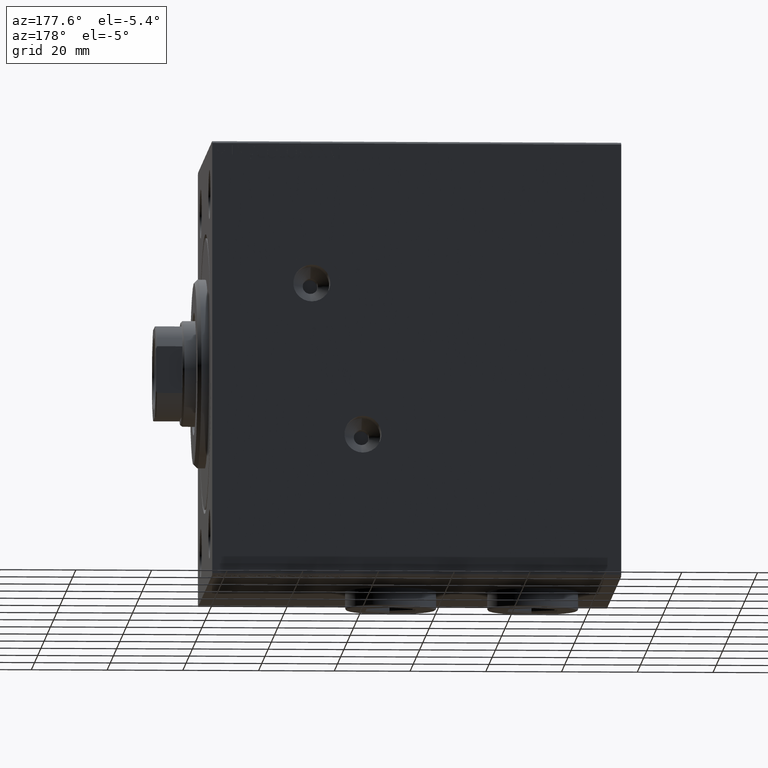
[diagram: clean part render]
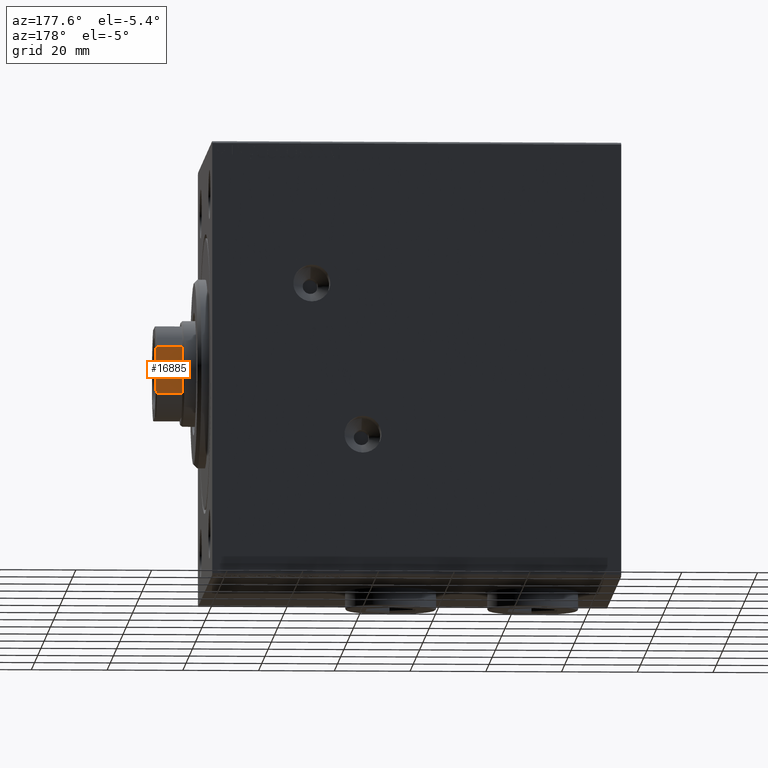
[diagram: same view with one face highlighted and labeled with its STEP entity id]
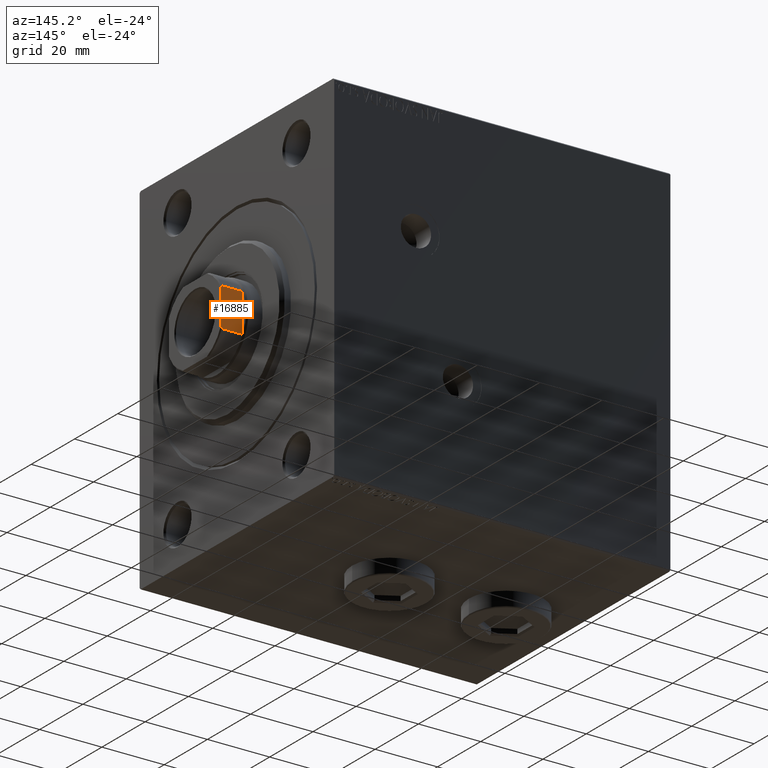
[diagram: same view with one face highlighted and labeled with its STEP entity id]
A machine part, auxiliary view. The second image highlights one B-rep face of the part: STEP entity #16885.
A second angle (auxiliary view) of the same face is appended — the face is thin or edge-on in the first view.
In plain terms, the highlighted planar face has unit normal (0, -1, 0).
Its self-contained STEP definition (entity closure, byte-faithful):
#210 = CARTESIAN_POINT ( 'NONE',  ( -6.184658438426490434, 12.00000000000000000, 103.7000000000000028 ) ) ;
#387 = CARTESIAN_POINT ( 'NONE',  ( 5.499090833947071211, 12.00000000000000000, 104.0000000000000142 ) ) ;
#3299 = CARTESIAN_POINT ( 'NONE',  ( -12.00000000000000178, 12.00000000000000000, 104.0000000000000142 ) ) ;
#3728 = CARTESIAN_POINT ( 'NONE',  ( -5.499090833946999268, 12.00000000000000000, 104.0000000000000142 ) ) ;
#4626 = EDGE_CURVE ( 'NONE', #15265, #40886, #9315, .T. ) ;
#5464 = LINE ( 'NONE', #30256, #32163 ) ;
#7803 = ORIENTED_EDGE ( 'NONE', *, *, #38481, .T. ) ;
#9315 = LINE ( 'NONE', #31536, #13083 ) ;
#11127 = VECTOR ( 'NONE', #34137, 1000.000000000000000 ) ;
#11155 = CARTESIAN_POINT ( 'NONE',  ( 5.957846001622728593, 12.00000000000000000, 103.8039079593495586 ) ) ;
#12340 = CARTESIAN_POINT ( 'NONE',  ( -6.184658438426489546, 12.00000000000000000, 97.00000000000000000 ) ) ;
#13083 = VECTOR ( 'NONE', #38085, 1000.000000000000000 ) ;
#14090 = VERTEX_POINT ( 'NONE', #21501 ) ;
#14661 = CARTESIAN_POINT ( 'NONE',  ( 5.729389212963480915, 12.00000000000000000, 103.9040582041574368 ) ) ;
#15265 = VERTEX_POINT ( 'NONE', #27568 ) ;
#16885 = ADVANCED_FACE ( 'NONE', ( #25830 ), #39875, .F. ) ;
#17553 = DIRECTION ( 'NONE',  ( -1.000000000000000000, -0.000000000000000000, -0.000000000000000000 ) ) ;
#19483 = B_SPLINE_CURVE_WITH_KNOTS ( 'NONE', 3,
 ( #210, #36679, #43462, #3728 ),
 .UNSPECIFIED., .F., .F.,
 ( 4, 4 ),
 ( 0.000000000000000000, 0.0007483334419306367311 ),
 .UNSPECIFIED. ) ;
#19813 = EDGE_CURVE ( 'NONE', #14090, #25218, #35343, .T. ) ;
#21501 = CARTESIAN_POINT ( 'NONE',  ( 5.499090833947071211, 12.00000000000000000, 104.0000000000000142 ) ) ;
#23625 = EDGE_CURVE ( 'NONE', #40886, #27778, #30154, .T. ) ;
#23856 = AXIS2_PLACEMENT_3D ( 'NONE', #25377, #29357, #28906 ) ;
#24199 = CARTESIAN_POINT ( 'NONE',  ( -6.184658438426490434, 12.00000000000000000, 103.7000000000000028 ) ) ;
#24798 = ORIENTED_EDGE ( 'NONE', *, *, #19813, .F. ) ;
#25218 = VERTEX_POINT ( 'NONE', #45701 ) ;
#25377 = CARTESIAN_POINT ( 'NONE',  ( -12.00000000000000178, 12.00000000000000000, 104.0000000000000142 ) ) ;
#25404 = CARTESIAN_POINT ( 'NONE',  ( 6.184658438426490434, 11.99999999999999822, 103.7000000000000455 ) ) ;
#25830 = FACE_OUTER_BOUND ( 'NONE', #41882, .T. ) ;
#27568 = CARTESIAN_POINT ( 'NONE',  ( 6.184658438426492211, 12.00000000000000178, 97.00000000000000000 ) ) ;
#27778 = VERTEX_POINT ( 'NONE', #24199 ) ;
#28478 = ORIENTED_EDGE ( 'NONE', *, *, #4626, .T. ) ;
#28655 = EDGE_CURVE ( 'NONE', #15265, #36200, #5464, .T. ) ;
#28906 = DIRECTION ( 'NONE',  ( 0.000000000000000000, -0.000000000000000000, -1.000000000000000000 ) ) ;
#29357 = DIRECTION ( 'NONE',  ( 0.000000000000000000, -1.000000000000000000, 0.000000000000000000 ) ) ;
#29482 = ORIENTED_EDGE ( 'NONE', *, *, #45416, .T. ) ;
#29753 = B_SPLINE_CURVE_WITH_KNOTS ( 'NONE', 3,
 ( #387, #14661, #11155, #25404 ),
 .UNSPECIFIED., .F., .F.,
 ( 4, 4 ),
 ( 8.673617379884034509E-19, 0.0007483334419305546570 ),
 .UNSPECIFIED. ) ;
#30154 = LINE ( 'NONE', #44195, #11127 ) ;
#30256 = CARTESIAN_POINT ( 'NONE',  ( 6.184658438426490434, 11.99999999999999822, -0.001000000000001000089 ) ) ;
#31536 = CARTESIAN_POINT ( 'NONE',  ( -12.00000000000000178, 12.00000000000000000, 97.00000000000000000 ) ) ;
#32163 = VECTOR ( 'NONE', #32454, 1000.000000000000000 ) ;
#32454 = DIRECTION ( 'NONE',  ( -0.000000000000000000, -0.000000000000000000, 1.000000000000000000 ) ) ;
#34137 = DIRECTION ( 'NONE',  ( -0.000000000000000000, -0.000000000000000000, 1.000000000000000000 ) ) ;
#35144 = ORIENTED_EDGE ( 'NONE', *, *, #28655, .F. ) ;
#35343 = LINE ( 'NONE', #3299, #42345 ) ;
#36200 = VERTEX_POINT ( 'NONE', #39566 ) ;
#36679 = CARTESIAN_POINT ( 'NONE',  ( -5.957846001622708165, 12.00000000000000000, 103.8039079593495302 ) ) ;
#38085 = DIRECTION ( 'NONE',  ( -1.000000000000000000, -0.000000000000000000, -0.000000000000000000 ) ) ;
#38481 = EDGE_CURVE ( 'NONE', #14090, #36200, #29753, .T. ) ;
#39566 = CARTESIAN_POINT ( 'NONE',  ( 6.184658438426490434, 11.99999999999999822, 103.7000000000000455 ) ) ;
#39875 = PLANE ( 'NONE',  #23856 ) ;
#40435 = ORIENTED_EDGE ( 'NONE', *, *, #23625, .T. ) ;
#40886 = VERTEX_POINT ( 'NONE', #12340 ) ;
#41882 = EDGE_LOOP ( 'NONE', ( #24798, #7803, #35144, #28478, #40435, #29482 ) ) ;
#42345 = VECTOR ( 'NONE', #17553, 1000.000000000000000 ) ;
#43462 = CARTESIAN_POINT ( 'NONE',  ( -5.729389212963434730, 12.00000000000000000, 103.9040582041574226 ) ) ;
#44195 = CARTESIAN_POINT ( 'NONE',  ( -6.184658438426490434, 12.00000000000000000, -0.001000000000001000089 ) ) ;
#45416 = EDGE_CURVE ( 'NONE', #27778, #25218, #19483, .T. ) ;
#45701 = CARTESIAN_POINT ( 'NONE',  ( -5.499090833946999268, 12.00000000000000000, 104.0000000000000142 ) ) ;